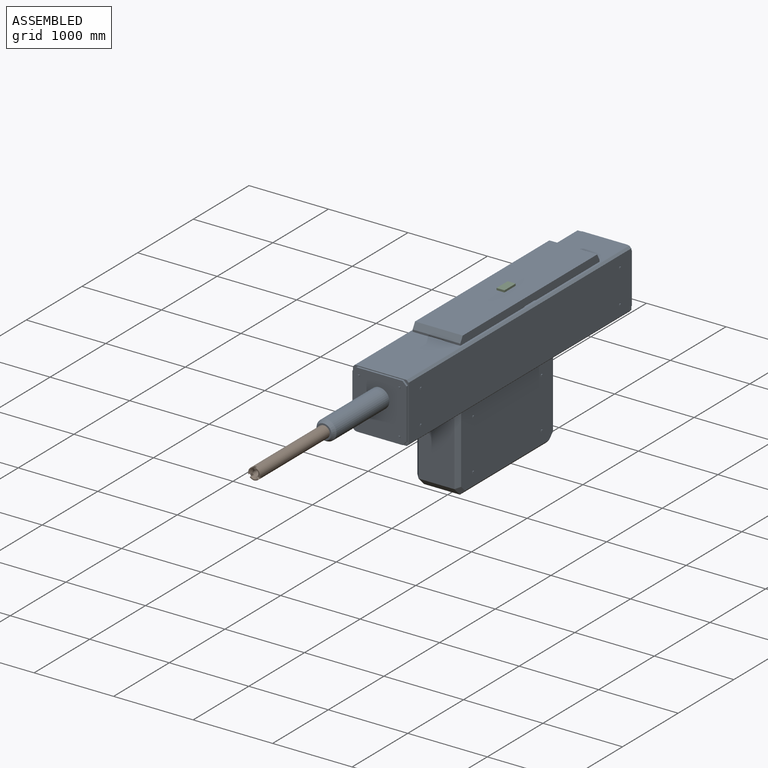
[diagram: assembled view]
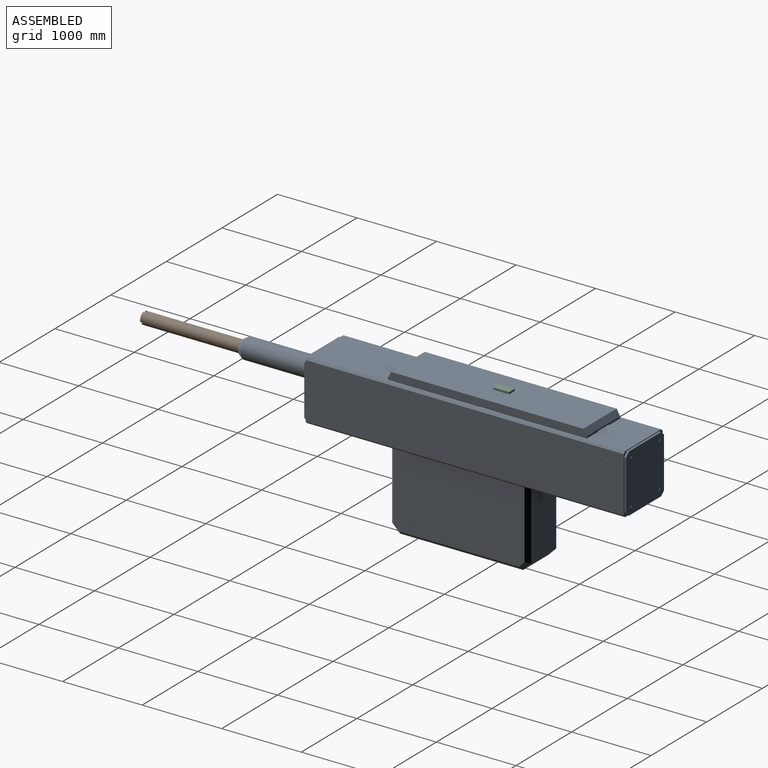
[diagram: assembled view, second angle]
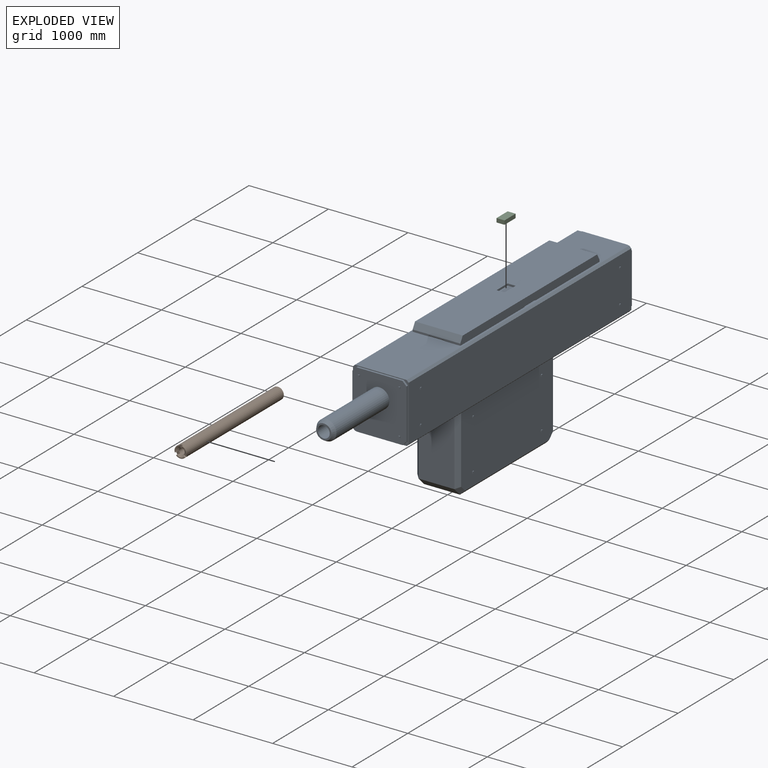
[diagram: exploded view]
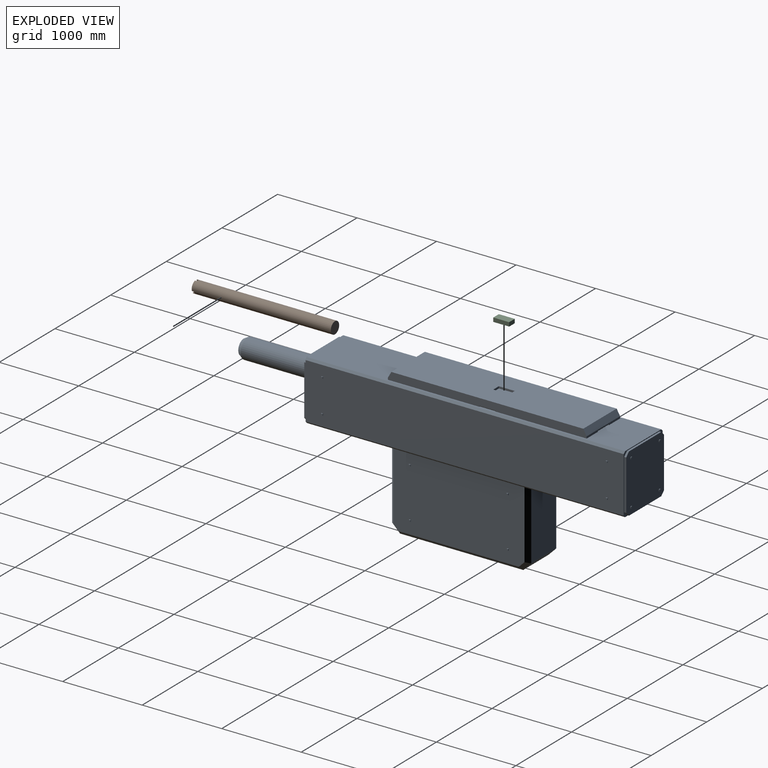
[diagram: exploded view, second angle]
ASSEMBLY  parts=3 mates=2
PART A: 206 faces, bbox 720x5060x1850 mm
  f0: plane 2413.4x600mm, normal (0,0,1), area 1428038.5mm2, adj f3,f47,f48,f111,f201,f202,f203,f204
  f1: plane 4000x700mm, normal (1,0,0), area 2798400mm2, adj f6,f7,f10,f11,f90,f91,f92,f93
  f2: plane 900x450mm, normal (0,1,0), area 404000mm2, adj f8,f56,f62,f65,f67,f150,f153
  f3: plane 2500x100mm, normal (1,0,0), area 244752.4mm2, adj f0,f9,f45,f46,f47,f48,f49,f50
  f4: plane 730x680mm, normal (0,1,0), area 489800mm2, adj f15,f16,f17,f18,f19,f32,f33,f34
  f5: plane 730x680mm, normal (0,-1,0), area 440712.6mm2, adj f12,f13,f14,f20,f21,f22,f23,f24
  f6: plane 750x700mm, normal (0,1,0), area 32350mm2, adj f1,f8,f9,f10,f11,f15,f16,f17
  f7: plane 750x700mm, normal (0,-1,0), area 32350mm2, adj f1,f8,f9,f10,f11,f12,f13,f14
  f8: plane 4000x650mm, normal (0,0,-1), area 1646500mm2, adj f2,f6,f7,f10,f43,f44,f58,f62
  f9: plane 4000x650mm, normal (0,0,1), area 1108000mm2, adj f3,f6,f7,f11,f45,f46,f49,f50
  f10: plane 4000x25mm, normal (0.71,0,-0.71), area 141421.4mm2, adj f1,f6,f7,f8
  f11: plane 4000x25mm, normal (0.71,0,0.71), area 141421.4mm2, adj f1,f6,f7,f9
  f12: plane 630x25mm, normal (1,0,0), area 15750mm2, adj f5,f7,f20,f21
  f13: plane 580x25mm, normal (0,0,1), area 14500mm2, adj f5,f7,f21,f119
  f14: plane 580x25mm, normal (0,0,-1), area 14500mm2, adj f5,f7,f20,f118
  f15: plane 580x25mm, normal (0,0,1), area 14500mm2, adj f4,f6,f19,f117
  f16: plane 630x25mm, normal (1,0,0), area 15750mm2, adj f4,f6,f18,f19
  f17: plane 580x25mm, normal (0,0,-1), area 14500mm2, adj f4,f6,f18,f116
  f18: plane 50x50mm, normal (0.71,0,-0.71), area 1767.8mm2, adj f4,f6,f16,f17
  f19: plane 50x50mm, normal (0.71,0,0.71), area 1767.8mm2, adj f4,f6,f15,f16
  f20: plane 50x50mm, normal (0.71,0,-0.71), area 1767.8mm2, adj f5,f7,f12,f14
  f21: plane 50x50mm, normal (0.71,0,0.71), area 1767.8mm2, adj f5,f7,f12,f13
  f22: plane 20x10mm, normal (0,0,1), area 200mm2, adj f5,f23,f25,f26
  f23: plane 20x10mm, normal (-1,0,0), area 200mm2, adj f5,f22,f24,f26
  f24: plane 20x10mm, normal (0,0,-1), area 200mm2, adj f5,f23,f25,f26
  f25: plane 20x10mm, normal (1,0,0), area 200mm2, adj f5,f22,f24,f26
  f26: plane 20x20mm, normal (0,-1,0), area 400mm2, adj f22,f23,f24,f25
  f27: plane 20x10mm, normal (0,0,1), area 200mm2, adj f5,f28,f30,f31
  f28: plane 20x10mm, normal (-1,0,0), area 200mm2, adj f5,f27,f29,f31
  f29: plane 20x10mm, normal (0,0,-1), area 200mm2, adj f5,f28,f30,f31
  f30: plane 20x10mm, normal (1,0,0), area 200mm2, adj f5,f27,f29,f31
  f31: plane 20x20mm, normal (0,-1,0), area 400mm2, adj f27,f28,f29,f30
  f32: plane 20x10mm, normal (0,0,1), area 200mm2, adj f4,f33,f35,f36
  f33: plane 20x10mm, normal (1,0,0), area 200mm2, adj f4,f32,f34,f36
  f34: plane 20x10mm, normal (0,0,-1), area 200mm2, adj f4,f33,f35,f36
  f35: plane 20x10mm, normal (-1,0,0), area 200mm2, adj f4,f32,f34,f36
  f36: plane 20x20mm, normal (0,1,0), area 400mm2, adj f32,f33,f34,f35
  f37: plane 20x10mm, normal (0,0,1), area 200mm2, adj f4,f38,f40,f41
  f38: plane 20x10mm, normal (1,0,0), area 200mm2, adj f4,f37,f39,f41
  f39: plane 20x10mm, normal (0,0,-1), area 200mm2, adj f4,f38,f40,f41
  f40: plane 20x10mm, normal (-1,0,0), area 200mm2, adj f4,f37,f39,f41
  f41: plane 20x20mm, normal (0,1,0), area 400mm2, adj f37,f38,f39,f40
  f42: plane 1550x450mm, normal (0,0,-1), area 697500mm2, adj f56,f57,f60,f148
  f43: plane 900x450mm, normal (0,-1,0), area 404000mm2, adj f8,f57,f58,f66,f69,f146,f154
  f44: plane 1650x950mm, normal (1,0,0), area 1559900mm2, adj f8,f58,f59,f60,f61,f62,f63,f64
  f45: plane 600x25mm, normal (0,1,0), area 13000mm2, adj f3,f9,f47,f52,f55,f111,f144
  f46: plane 600x25mm, normal (0,-1,0), area 13000mm2, adj f3,f9,f48,f51,f54,f111,f143
  f47: plane 600x75mm, normal (0,0.87,0.5), area 51961.5mm2, adj f0,f3,f45,f111
  f48: plane 600x75mm, normal (0,-0.87,0.5), area 51961.5mm2, adj f0,f3,f46,f111
  f49: plane 10x10mm, normal (0,-1,0), area 50mm2, adj f3,f9,f53
  f50: plane 10x10mm, normal (0,1,0), area 50mm2, adj f3,f9,f53
  f51: plane 10x10mm, normal (-1,0,0), area 50mm2, adj f9,f46,f54
  f52: plane 10x10mm, normal (-1,0,0), area 50mm2, adj f9,f45,f55
  f53: plane 200x10mm, normal (0.71,0,-0.71), area 2828.4mm2, adj f3,f9,f49,f50
  f54: plane 200x10mm, normal (0,-0.71,-0.71), area 2828.4mm2, adj f9,f46,f51,f143
  f55: plane 200x10mm, normal (0,0.71,-0.71), area 2828.4mm2, adj f9,f45,f52,f144
  f56: plane 450x100mm, normal (0,0.71,-0.71), area 63639.6mm2, adj f2,f42,f61,f149
  f57: plane 450x100mm, normal (0,-0.71,-0.71), area 63639.6mm2, adj f42,f43,f59,f147
  f58: plane 900x50mm, normal (0.71,-0.71,0), area 62907.4mm2, adj f8,f43,f44,f59
  f59: plane 120.71x120.71mm, normal (0.71,-0.5,-0.5), area 8535.5mm2, adj f44,f57,f58,f60
  f60: plane 1550x50mm, normal (0.71,0,-0.71), area 108137.1mm2, adj f42,f44,f59,f61
  f61: plane 120.71x120.71mm, normal (0.71,0.5,-0.5), area 8535.5mm2, adj f44,f56,f60,f62
  f62: plane 900x50mm, normal (0.71,0.71,0), area 62907.4mm2, adj f2,f8,f44,f61
  f63: plane 10x10mm, normal (0,1,0), area 50mm2, adj f8,f44,f68
  f64: plane 10x10mm, normal (0,-1,0), area 50mm2, adj f8,f44,f68
  f65: plane 10x10mm, normal (-1,0,0), area 50mm2, adj f2,f8,f67
  f66: plane 10x10mm, normal (-1,0,0), area 50mm2, adj f8,f43,f69
  f67: plane 100x10mm, normal (0,0.71,0.71), area 1414.2mm2, adj f2,f8,f65,f153
  f68: plane 100x10mm, normal (0.71,0,0.71), area 1414.2mm2, adj f8,f44,f63,f64
  f69: plane 100x10mm, normal (0,-0.71,0.71), area 1414.2mm2, adj f8,f43,f66,f154
  f70: plane 20x10mm, normal (0,0,1), area 200mm2, adj f44,f71,f73,f74
  f71: plane 20x10mm, normal (0,-1,0), area 200mm2, adj f44,f70,f72,f74
  f72: plane 20x10mm, normal (0,0,-1), area 200mm2, adj f44,f71,f73,f74
  f73: plane 20x10mm, normal (0,1,0), area 200mm2, adj f44,f70,f72,f74
  f74: plane 20x20mm, normal (1,0,0), area 400mm2, adj f70,f71,f72,f73
  f75: plane 20x10mm, normal (0,0,1), area 200mm2, adj f44,f76,f78,f79
  f76: plane 20x10mm, normal (0,-1,0), area 200mm2, adj f44,f75,f77,f79
  f77: plane 20x10mm, normal (0,0,-1), area 200mm2, adj f44,f76,f78,f79
  f78: plane 20x10mm, normal (0,1,0), area 200mm2, adj f44,f75,f77,f79
  f79: plane 20x20mm, normal (1,0,0), area 400mm2, adj f75,f76,f77,f78
  f80: plane 20x10mm, normal (0,0,1), area 200mm2, adj f44,f81,f83,f84
  f81: plane 20x10mm, normal (0,-1,0), area 200mm2, adj f44,f80,f82,f84
  f82: plane 20x10mm, normal (0,0,-1), area 200mm2, adj f44,f81,f83,f84
  f83: plane 20x10mm, normal (0,1,0), area 200mm2, adj f44,f80,f82,f84
  f84: plane 20x20mm, normal (1,0,0), area 400mm2, adj f80,f81,f82,f83
  f85: plane 20x10mm, normal (0,0,1), area 200mm2, adj f44,f86,f88,f89
  f86: plane 20x10mm, normal (0,-1,0), area 200mm2, adj f44,f85,f87,f89
  f87: plane 20x10mm, normal (0,0,-1), area 200mm2, adj f44,f86,f88,f89
  f88: plane 20x10mm, normal (0,1,0), area 200mm2, adj f44,f85,f87,f89
  f89: plane 20x20mm, normal (1,0,0), area 400mm2, adj f85,f86,f87,f88
  f90: plane 20x10mm, normal (0,0,1), area 200mm2, adj f1,f91,f93,f94
  f91: plane 20x10mm, normal (0,-1,0), area 200mm2, adj f1,f90,f92,f94
  f92: plane 20x10mm, normal (0,0,-1), area 200mm2, adj f1,f91,f93,f94
  f93: plane 20x10mm, normal (0,1,0), area 200mm2, adj f1,f90,f92,f94
  f94: plane 20x20mm, normal (1,0,0), area 400mm2, adj f90,f91,f92,f93
  f95: plane 20x10mm, normal (0,0,1), area 200mm2, adj f1,f96,f98,f99
  f96: plane 20x10mm, normal (0,-1,0), area 200mm2, adj f1,f95,f97,f99
  f97: plane 20x10mm, normal (0,0,-1), area 200mm2, adj f1,f96,f98,f99
  f98: plane 20x10mm, normal (0,1,0), area 200mm2, adj f1,f95,f97,f99
  f99: plane 20x20mm, normal (1,0,0), area 400mm2, adj f95,f96,f97,f98
  f100: plane 20x10mm, normal (0,0,1), area 200mm2, adj f1,f101,f103,f104
  f101: plane 20x10mm, normal (0,-1,0), area 200mm2, adj f1,f100,f102,f104
  f102: plane 20x10mm, normal (0,0,-1), area 200mm2, adj f1,f101,f103,f104
  f103: plane 20x10mm, normal (0,1,0), area 200mm2, adj f1,f100,f102,f104
  f104: plane 20x20mm, normal (1,0,0), area 400mm2, adj f100,f101,f102,f103
  f105: plane 20x10mm, normal (0,0,1), area 200mm2, adj f1,f106,f108,f109
  f106: plane 20x10mm, normal (0,-1,0), area 200mm2, adj f1,f105,f107,f109
  f107: plane 20x10mm, normal (0,0,-1), area 200mm2, adj f1,f106,f108,f109
  f108: plane 20x10mm, normal (0,1,0), area 200mm2, adj f1,f105,f107,f109
  f109: plane 20x20mm, normal (1,0,0), area 400mm2, adj f105,f106,f107,f108
  f110: plane 4000x700mm, normal (-1,0,0), area 2798400mm2, adj f6,f7,f112,f113,f176,f177,f178,f179
  f111: plane 2500x100mm, normal (-1,0,0), area 244752.4mm2, adj f0,f9,f45,f46,f47,f48,f141,f142
  f112: plane 4000x25mm, normal (-0.71,0,-0.71), area 141421.4mm2, adj f6,f7,f8,f110
  f113: plane 4000x25mm, normal (-0.71,0,0.71), area 141421.4mm2, adj f6,f7,f9,f110
  f114: plane 630x25mm, normal (-1,0,0), area 15750mm2, adj f5,f7,f118,f119
  f115: plane 630x25mm, normal (-1,0,0), area 15750mm2, adj f4,f6,f116,f117
  f116: plane 50x50mm, normal (-0.71,0,-0.71), area 1767.8mm2, adj f4,f6,f17,f115
  f117: plane 50x50mm, normal (-0.71,0,0.71), area 1767.8mm2, adj f4,f6,f15,f115
  f118: plane 50x50mm, normal (-0.71,0,-0.71), area 1767.8mm2, adj f5,f7,f14,f114
  f119: plane 50x50mm, normal (-0.71,0,0.71), area 1767.8mm2, adj f5,f7,f13,f114
  f120: plane 20x10mm, normal (0,0,1), area 200mm2, adj f5,f121,f123,f124
  f121: plane 20x10mm, normal (1,0,0), area 200mm2, adj f5,f120,f122,f124
  f122: plane 20x10mm, normal (0,0,-1), area 200mm2, adj f5,f121,f123,f124
  f123: plane 20x10mm, normal (-1,0,0), area 200mm2, adj f5,f120,f122,f124
  f124: plane 20x20mm, normal (0,-1,0), area 400mm2, adj f120,f121,f122,f123
  f125: plane 20x10mm, normal (0,0,1), area 200mm2, adj f5,f126,f128,f129
  f126: plane 20x10mm, normal (1,0,0), area 200mm2, adj f5,f125,f127,f129
  f127: plane 20x10mm, normal (0,0,-1), area 200mm2, adj f5,f126,f128,f129
  f128: plane 20x10mm, normal (-1,0,0), area 200mm2, adj f5,f125,f127,f129
  f129: plane 20x20mm, normal (0,-1,0), area 400mm2, adj f125,f126,f127,f128
  f130: plane 20x10mm, normal (0,0,1), area 200mm2, adj f4,f131,f133,f134
  f131: plane 20x10mm, normal (-1,0,0), area 200mm2, adj f4,f130,f132,f134
  f132: plane 20x10mm, normal (0,0,-1), area 200mm2, adj f4,f131,f133,f134
  f133: plane 20x10mm, normal (1,0,0), area 200mm2, adj f4,f130,f132,f134
  f134: plane 20x20mm, normal (0,1,0), area 400mm2, adj f130,f131,f132,f133
  f135: plane 20x10mm, normal (0,0,1), area 200mm2, adj f4,f136,f138,f139
  f136: plane 20x10mm, normal (-1,0,0), area 200mm2, adj f4,f135,f137,f139
  f137: plane 20x10mm, normal (0,0,-1), area 200mm2, adj f4,f136,f138,f139
  f138: plane 20x10mm, normal (1,0,0), area 200mm2, adj f4,f135,f137,f139
  f139: plane 20x20mm, normal (0,1,0), area 400mm2, adj f135,f136,f137,f138
  f140: plane 1650x950mm, normal (-1,0,0), area 1559900mm2, adj f8,f146,f147,f148,f149,f150,f151,f152
  f141: plane 10x10mm, normal (0,-1,0), area 50mm2, adj f9,f111,f145
  f142: plane 10x10mm, normal (0,1,0), area 50mm2, adj f9,f111,f145
  f143: plane 10x10mm, normal (1,0,0), area 50mm2, adj f9,f46,f54
  f144: plane 10x10mm, normal (1,0,0), area 50mm2, adj f9,f45,f55
  f145: plane 200x10mm, normal (-0.71,0,-0.71), area 2828.4mm2, adj f9,f111,f141,f142
  f146: plane 900x50mm, normal (-0.71,-0.71,0), area 62907.4mm2, adj f8,f43,f140,f147
  f147: plane 120.71x120.71mm, normal (-0.71,-0.5,-0.5), area 8535.5mm2, adj f57,f140,f146,f148
  f148: plane 1550x50mm, normal (-0.71,0,-0.71), area 108137.1mm2, adj f42,f140,f147,f149
  f149: plane 120.71x120.71mm, normal (-0.71,0.5,-0.5), area 8535.5mm2, adj f56,f140,f148,f150
  f150: plane 900x50mm, normal (-0.71,0.71,0), area 62907.4mm2, adj f2,f8,f140,f149
  f151: plane 10x10mm, normal (0,1,0), area 50mm2, adj f8,f140,f155
  f152: plane 10x10mm, normal (0,-1,0), area 50mm2, adj f8,f140,f155
  f153: plane 10x10mm, normal (1,0,0), area 50mm2, adj f2,f8,f67
  f154: plane 10x10mm, normal (1,0,0), area 50mm2, adj f8,f43,f69
  f155: plane 100x10mm, normal (-0.71,0,0.71), area 1414.2mm2, adj f8,f140,f151,f152
  f156: plane 20x10mm, normal (0,0,1), area 200mm2, adj f140,f157,f159,f160
  f157: plane 20x10mm, normal (0,-1,0), area 200mm2, adj f140,f156,f158,f160
  f158: plane 20x10mm, normal (0,0,-1), area 200mm2, adj f140,f157,f159,f160
  f159: plane 20x10mm, normal (0,1,0), area 200mm2, adj f140,f156,f158,f160
  f160: plane 20x20mm, normal (-1,0,0), area 400mm2, adj f156,f157,f158,f159
  f161: plane 20x10mm, normal (0,0,1), area 200mm2, adj f140,f162,f164,f165
  f162: plane 20x10mm, normal (0,-1,0), area 200mm2, adj f140,f161,f163,f165
  f163: plane 20x10mm, normal (0,0,-1), area 200mm2, adj f140,f162,f164,f165
  f164: plane 20x10mm, normal (0,1,0), area 200mm2, adj f140,f161,f163,f165
  f165: plane 20x20mm, normal (-1,0,0), area 400mm2, adj f161,f162,f163,f164
  f166: plane 20x10mm, normal (0,0,1), area 200mm2, adj f140,f167,f169,f170
  f167: plane 20x10mm, normal (0,-1,0), area 200mm2, adj f140,f166,f168,f170
  f168: plane 20x10mm, normal (0,0,-1), area 200mm2, adj f140,f167,f169,f170
  f169: plane 20x10mm, normal (0,1,0), area 200mm2, adj f140,f166,f168,f170
  f170: plane 20x20mm, normal (-1,0,0), area 400mm2, adj f166,f167,f168,f169
  f171: plane 20x10mm, normal (0,0,1), area 200mm2, adj f140,f172,f174,f175
  f172: plane 20x10mm, normal (0,-1,0), area 200mm2, adj f140,f171,f173,f175
  f173: plane 20x10mm, normal (0,0,-1), area 200mm2, adj f140,f172,f174,f175
  f174: plane 20x10mm, normal (0,1,0), area 200mm2, adj f140,f171,f173,f175
  f175: plane 20x20mm, normal (-1,0,0), area 400mm2, adj f171,f172,f173,f174
  f176: plane 20x10mm, normal (0,0,1), area 200mm2, adj f110,f177,f179,f180
  f177: plane 20x10mm, normal (0,-1,0), area 200mm2, adj f110,f176,f178,f180
  f178: plane 20x10mm, normal (0,0,-1), area 200mm2, adj f110,f177,f179,f180
  f179: plane 20x10mm, normal (0,1,0), area 200mm2, adj f110,f176,f178,f180
  f180: plane 20x20mm, normal (-1,0,0), area 400mm2, adj f176,f177,f178,f179
  f181: plane 20x10mm, normal (0,0,1), area 200mm2, adj f110,f182,f184,f185
  f182: plane 20x10mm, normal (0,-1,0), area 200mm2, adj f110,f181,f183,f185
  f183: plane 20x10mm, normal (0,0,-1), area 200mm2, adj f110,f182,f184,f185
  f184: plane 20x10mm, normal (0,1,0), area 200mm2, adj f110,f181,f183,f185
  f185: plane 20x20mm, normal (-1,0,0), area 400mm2, adj f181,f182,f183,f184
  f186: plane 20x10mm, normal (0,0,1), area 200mm2, adj f110,f187,f189,f190
  f187: plane 20x10mm, normal (0,-1,0), area 200mm2, adj f110,f186,f188,f190
  f188: plane 20x10mm, normal (0,0,-1), area 200mm2, adj f110,f187,f189,f190
  f189: plane 20x10mm, normal (0,1,0), area 200mm2, adj f110,f186,f188,f190
  f190: plane 20x20mm, normal (-1,0,0), area 400mm2, adj f186,f187,f188,f189
  f191: plane 20x10mm, normal (0,0,1), area 200mm2, adj f110,f192,f194,f195
  f192: plane 20x10mm, normal (0,-1,0), area 200mm2, adj f110,f191,f193,f195
  f193: plane 20x10mm, normal (0,0,-1), area 200mm2, adj f110,f192,f194,f195
  f194: plane 20x10mm, normal (0,1,0), area 200mm2, adj f110,f191,f193,f195
  f195: plane 20x20mm, normal (-1,0,0), area 400mm2, adj f191,f192,f193,f194
  f196: cylinder r=125mm len=950mm, axis (0,1,0), area 746128.3mm2, adj f5,f198
  f197: plane 192.27x192.27mm, normal (0,-1,0), area 11361.4mm2, adj f198,f199
  f198: cone r=96.13mm half-angle=30deg, axis (0,1,0), area 40109mm2, adj f196,f197
  f199: cylinder r=75mm len=500mm, axis (0,-1,0), area 235619.4mm2, adj f197,f200
  f200: plane 150x150mm, normal (0,-1,0), area 17671.5mm2, adj f199
  f201: plane 100x25mm, normal (0,-1,0), area 2500mm2, adj f0,f202,f204,f205
  f202: plane 200x25mm, normal (1,0,0), area 5000mm2, adj f0,f201,f203,f205
  f203: plane 100x25mm, normal (0,1,0), area 2500mm2, adj f0,f202,f204,f205
  f204: plane 200x25mm, normal (-1,0,0), area 5000mm2, adj f0,f201,f203,f205
  f205: plane 200x100mm, normal (0,0,1), area 20000mm2, adj f201,f202,f203,f204
PART B: 19 faces, bbox 150x1750x150 mm
  f0: cylinder r=75mm len=1750mm, axis (0,1,0), area 822402.8mm2, adj f1,f3,f5,f7,f10,f11,f12,f13
  f1: plane 97.24x60mm, normal (0,-1,0), area 1421.8mm2, adj f0,f2,f11,f16
  f2: cone r=37.5mm half-angle=45deg, axis (0,-1,0), area 2623.9mm2, adj f1,f8,f11,f16
  f3: plane 112.28x31.67mm, normal (0,-1,0), area 1421.8mm2, adj f0,f4,f13,f17
  f4: cone r=37.5mm half-angle=45deg, axis (0,-1,0), area 2623.9mm2, adj f3,f8,f13,f17
  f5: plane 97.24x60mm, normal (0,-1,0), area 1421.8mm2, adj f0,f6,f10,f14
  f6: cone r=37.5mm half-angle=45deg, axis (0,-1,0), area 2623.9mm2, adj f5,f8,f10,f14
  f7: plane 150x150mm, normal (0,1,0), area 17671.5mm2, adj f0
  f8: cylinder r=37.5mm len=475mm, axis (0,-1,0), area 111919.2mm2, adj f2,f4,f6,f9,f12,f15,f18
  f9: plane 75x75mm, normal (0,-1,0), area 4417.9mm2, adj f8
  f10: plane 39.12x25mm, normal (1,0,0), area 646.1mm2, adj f0,f5,f6,f12
  f11: plane 39.12x25mm, normal (-1,0,0), area 646.1mm2, adj f0,f1,f2,f12
  f12: plane 40.63x30mm, normal (0,-1,0), area 1140.7mm2, adj f0,f8,f10,f11
  f13: plane 33.88x25mm, normal (-0.5,0,0.87), area 646.1mm2, adj f0,f3,f4,f15
  f14: plane 33.88x25mm, normal (0.5,0,-0.87), area 646.1mm2, adj f0,f5,f6,f15
  f15: plane 48.88x45.54mm, normal (0,-1,0), area 1140.7mm2, adj f0,f8,f13,f14
  f16: plane 33.88x25mm, normal (-0.5,0,-0.87), area 646.1mm2, adj f0,f1,f2,f18
  f17: plane 33.88x25mm, normal (0.5,0,0.87), area 646.1mm2, adj f0,f3,f4,f18
  f18: plane 48.88x45.54mm, normal (0,-1,0), area 1140.7mm2, adj f0,f8,f16,f17
PART C: 6 faces, bbox 100x200x50 mm
  f0: plane 100x50mm, normal (0,1,0), area 5000mm2, adj f1,f3,f4,f5
  f1: plane 200x50mm, normal (-1,0,0), area 10000mm2, adj f0,f2,f4,f5
  f2: plane 100x50mm, normal (0,-1,0), area 5000mm2, adj f1,f3,f4,f5
  f3: plane 200x50mm, normal (1,0,0), area 10000mm2, adj f0,f2,f4,f5
  f4: plane 200x100mm, normal (0,0,1), area 20000mm2, adj f0,f1,f2,f3
  f5: plane 200x100mm, normal (0,0,-1), area 20000mm2, adj f0,f1,f2,f3
PLACE A t=(350.12,-1200,65.92)mm
PLACE B t=(350.12,-1200,65.92)mm
PLACE C t=(350.12,-1200,65.92)mm
MATE fastened B.f0 <-> A.f196  axis (0,1,0) through (0.12,-1725,530.92)mm
MATE fastened C.f5 <-> A.f205  axis (0,0,-1) through (0.12,1050,890.92)mm
